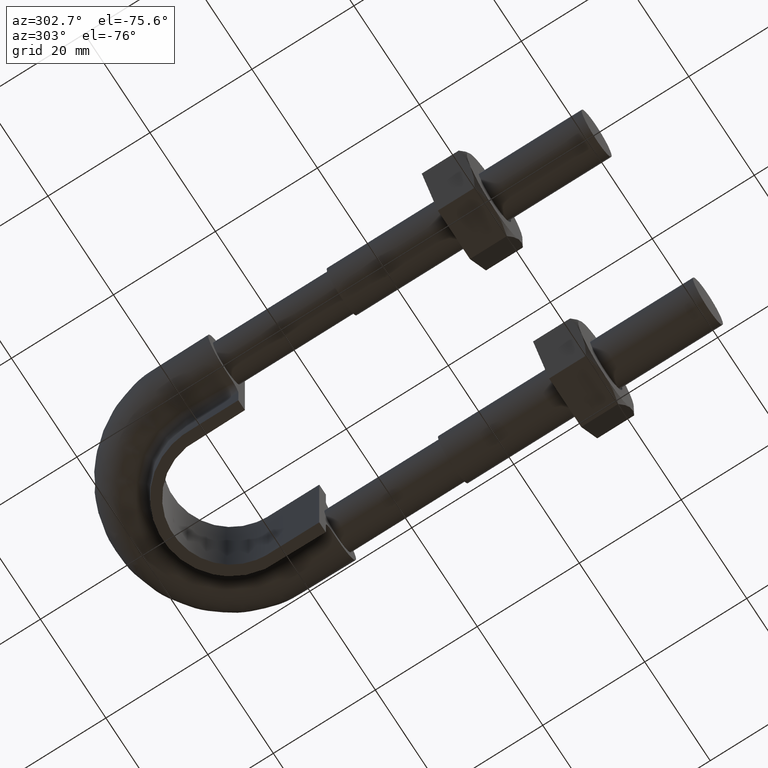
[diagram: clean part render]
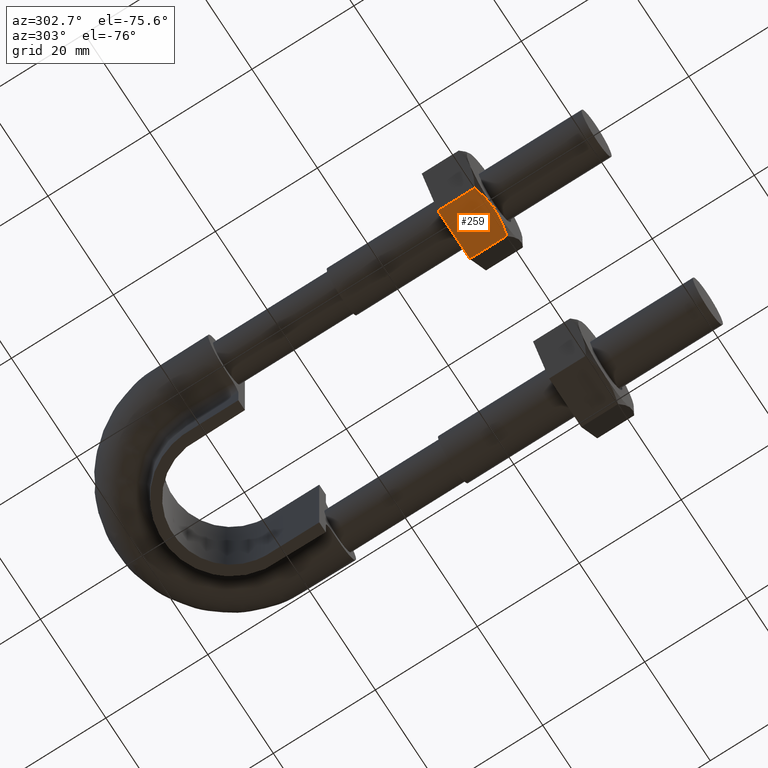
[diagram: same view with one face highlighted and labeled with its STEP entity id]
A machine part, auxiliary view. The second image highlights one B-rep face of the part: STEP entity #259.
In plain terms, the highlighted planar face has unit normal (0, 0, 1).
Its self-contained STEP definition (entity closure, byte-faithful):
#259 = ADVANCED_FACE( '', ( #388 ), #389, .F. );
#388 = FACE_OUTER_BOUND( '', #1467, .T. );
#389 = PLANE( '', #1468 );
#1467 = EDGE_LOOP( '', ( #1820, #1821, #1822, #1823, #1824 ) );
#1468 = AXIS2_PLACEMENT_3D( '', #1825, #1826, #1827 );
#1820 = ORIENTED_EDGE( '', *, *, #2138, .F. );
#1821 = ORIENTED_EDGE( '', *, *, #2169, .F. );
#1822 = ORIENTED_EDGE( '', *, *, #2173, .F. );
#1823 = ORIENTED_EDGE( '', *, *, #2159, .F. );
#1824 = ORIENTED_EDGE( '', *, *, #2174, .F. );
#1825 = CARTESIAN_POINT( '', ( -12.0925227118882, 28.0000000000000, -8.50000000000001 ) );
#1826 = DIRECTION( '', ( 0.000000000000000, 3.06151588455594E-016, 1.00000000000000 ) );
#1827 = DIRECTION( '', ( 1.00000000000000, 0.000000000000000, 0.000000000000000 ) );
#2138 = EDGE_CURVE( '', #2322, #2318, #2324, .T. );
#2159 = EDGE_CURVE( '', #2361, #2363, #2364, .T. );
#2169 = EDGE_CURVE( '', #2377, #2322, #2379, .T. );
#2173 = EDGE_CURVE( '', #2363, #2377, #2385, .T. );
#2174 = EDGE_CURVE( '', #2318, #2361, #2386, .F. );
#2318 = VERTEX_POINT( '', #2766 );
#2322 = VERTEX_POINT( '', #2775 );
#2324 = B_SPLINE_CURVE_WITH_KNOTS( '', 3, ( #2777, #2778, #2779, #2780, #2781, #2782 ), .UNSPECIFIED., .F., .F., ( 4, 2, 4 ), ( 0.000000000000000, 0.00246745482903606, 0.00493490965807211 ), .UNSPECIFIED. );
#2361 = VERTEX_POINT( '', #2852 );
#2363 = VERTEX_POINT( '', #2854 );
#2364 = LINE( '', #2855, #2856 );
#2377 = VERTEX_POINT( '', #2872 );
#2379 = B_SPLINE_CURVE_WITH_KNOTS( '', 3, ( #2874, #2875, #2876, #2877, #2878, #2879 ), .UNSPECIFIED., .F., .F., ( 4, 2, 4 ), ( 6.93889390390723E-018, 0.00246745482903606, 0.00493490965807212 ), .UNSPECIFIED. );
#2385 = LINE( '', #2890, #2891 );
#2386 = LINE( '', #2892, #2893 );
#2766 = CARTESIAN_POINT( '', ( -12.1225006406971, 20.7505553499465, -8.50000000000001 ) );
#2775 = CARTESIAN_POINT( '', ( -17.0000000000000, 20.0000000000000, -8.50000000000001 ) );
#2777 = CARTESIAN_POINT( '', ( -17.0000000000000, 20.0000000000000, -8.50000000000001 ) );
#2778 = CARTESIAN_POINT( '', ( -16.1678340498093, 20.0000000000000, -8.50000000000001 ) );
#2779 = CARTESIAN_POINT( '', ( -15.3466937523143, 20.0716504305290, -8.50000000000001 ) );
#2780 = CARTESIAN_POINT( '', ( -13.7225568243371, 20.3328582843706, -8.50000000000001 ) );
#2781 = CARTESIAN_POINT( '', ( -12.9194282933227, 20.5215585493657, -8.50000000000001 ) );
#2782 = CARTESIAN_POINT( '', ( -12.1225006406971, 20.7505553499465, -8.50000000000001 ) );
#2852 = CARTESIAN_POINT( '', ( -12.1225006406971, 28.0000000000000, -8.50000000000001 ) );
#2854 = CARTESIAN_POINT( '', ( -21.8774993593029, 28.0000000000000, -8.50000000000001 ) );
#2855 = CARTESIAN_POINT( '', ( -12.1000000000000, 28.0000000000000, -8.50000000000001 ) );
#2856 = VECTOR( '', #3194, 1000.00000000000 );
#2872 = CARTESIAN_POINT( '', ( -21.8774993593029, 20.7505553499465, -8.50000000000001 ) );
#2874 = CARTESIAN_POINT( '', ( -21.8774993593029, 20.7505553499465, -8.50000000000001 ) );
#2875 = CARTESIAN_POINT( '', ( -21.0805717066773, 20.5215585493657, -8.50000000000001 ) );
#2876 = CARTESIAN_POINT( '', ( -20.2774431756629, 20.3328582843707, -8.50000000000001 ) );
#2877 = CARTESIAN_POINT( '', ( -18.6533062476857, 20.0716504305290, -8.50000000000001 ) );
#2878 = CARTESIAN_POINT( '', ( -17.8321659501907, 20.0000000000000, -8.50000000000001 ) );
#2879 = CARTESIAN_POINT( '', ( -17.0000000000000, 20.0000000000000, -8.50000000000001 ) );
#2890 = CARTESIAN_POINT( '', ( -21.8774993593029, 28.0000000000000, -8.50000000000001 ) );
#2891 = VECTOR( '', #3222, 1000.00000000000 );
#2892 = CARTESIAN_POINT( '', ( -12.1225006406971, 28.0000000000000, -8.50000000000001 ) );
#2893 = VECTOR( '', #3223, 1000.00000000000 );
#3194 = DIRECTION( '', ( -1.00000000000000, 2.44921270764475E-016, -7.49830360911067E-032 ) );
#3222 = DIRECTION( '', ( -2.44921270764475E-016, -1.00000000000000, 3.06151588455594E-016 ) );
#3223 = DIRECTION( '', ( -2.44921270764475E-016, -1.00000000000000, 3.06151588455594E-016 ) );